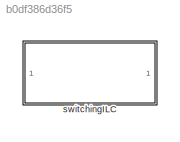
MODEL slx_b0df386d36f5
KIND library
CONFIG AbsTol = auto
CONFIG EnableMultiTasking = off
CONFIG FixedStep = auto
CONFIG MaxStep = auto
CONFIG MinStep = auto
CONFIG RelTol = 1e-3
CONFIG SampleTimeConstraint = Unconstrained
CONFIG SolverName = VariableStepAuto
CONFIG StartTime = 0.0
CONFIG StopTime = 10.0
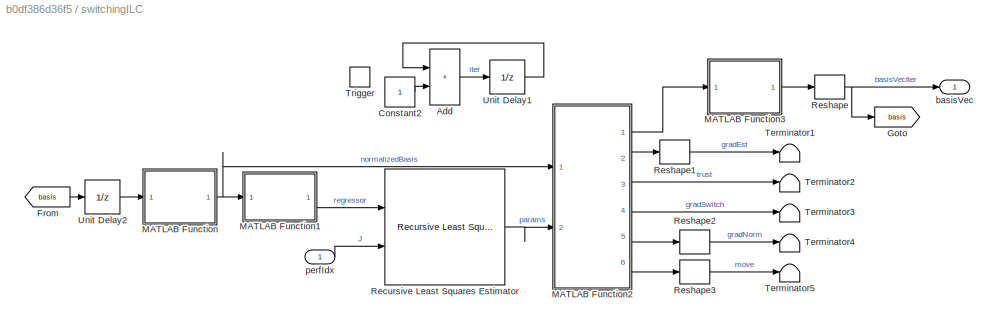
BLOCK [SubSystem] switchingILC
  Ports = [1, 1, 0, 1]
  RequestExecContextInheritance = off
BLOCK [Sum] switchingILC/Add
  IconShape = rectangular
  Ports = [2, 1]
BLOCK [Constant] switchingILC/Constant2
BLOCK [From] switchingILC/From
  GotoTag = basis
BLOCK [Goto] switchingILC/Goto
  GotoTag = basis
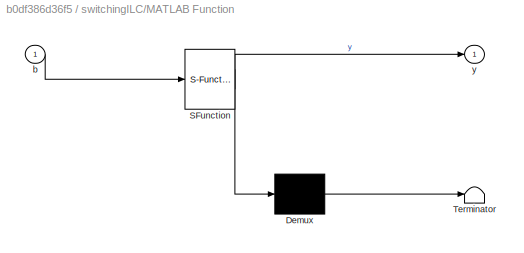
BLOCK [SubSystem] switchingILC/MATLAB Function
  ErrorFcn = Stateflow.Translate.translate
  PermitHierarchicalResolution = ExplicitOnly
  Ports = [1, 1]
  RequestExecContextInheritance = off
  SFBlockType = MATLAB Function
  TreatAsAtomicUnit = on
BLOCK [Demux] switchingILC/MATLAB Function/ Demux 
  Outputs = 1
  Ports = [1, 1]
BLOCK [S-Function] switchingILC/MATLAB Function/ SFunction 
  EnableBusSupport = off
  FunctionName = sf_sfun
  Parameters = lowerLim,upperLim
  PortCounts = [1 2]
  Ports = [1, 2]
  SFcnIsStateOwnerBlock = off
  SFunctionDeploymentMode = off
  Tag = Stateflow S-Function 3
BLOCK [Terminator] switchingILC/MATLAB Function/ Terminator 
BLOCK [Inport] switchingILC/MATLAB Function/b
BLOCK [Outport] switchingILC/MATLAB Function/y
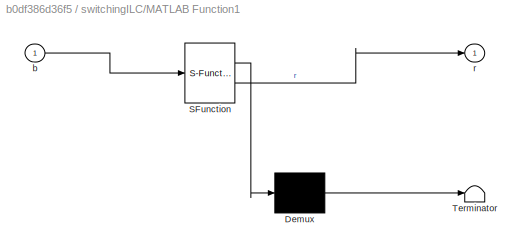
BLOCK [SubSystem] switchingILC/MATLAB Function1
  ErrorFcn = Stateflow.Translate.translate
  PermitHierarchicalResolution = ExplicitOnly
  Ports = [1, 1]
  RequestExecContextInheritance = off
  SFBlockType = MATLAB Function
  TreatAsAtomicUnit = on
BLOCK [Demux] switchingILC/MATLAB Function1/ Demux 
  Outputs = 1
  Ports = [1, 1]
BLOCK [S-Function] switchingILC/MATLAB Function1/ SFunction 
  EnableBusSupport = off
  FunctionName = sf_sfun
  PortCounts = [1 2]
  Ports = [1, 2]
  SFcnIsStateOwnerBlock = off
  SFunctionDeploymentMode = off
  Tag = Stateflow S-Function 2
BLOCK [Terminator] switchingILC/MATLAB Function1/ Terminator 
BLOCK [Inport] switchingILC/MATLAB Function1/b
BLOCK [Outport] switchingILC/MATLAB Function1/r
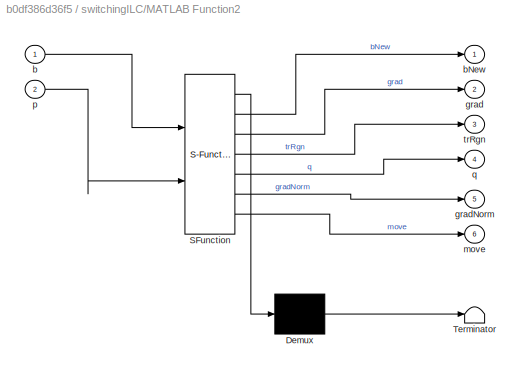
BLOCK [SubSystem] switchingILC/MATLAB Function2
  ErrorFcn = Stateflow.Translate.translate
  PermitHierarchicalResolution = ExplicitOnly
  Ports = [2, 6]
  RequestExecContextInheritance = off
  SFBlockType = MATLAB Function
  TreatAsAtomicUnit = on
BLOCK [Demux] switchingILC/MATLAB Function2/ Demux 
  Outputs = 1
  Ports = [1, 1]
BLOCK [S-Function] switchingILC/MATLAB Function2/ SFunction 
  EnableBusSupport = off
  FunctionName = sf_sfun
  Parameters = amp,lrn,paramDims,switching,trust
  PortCounts = [2 7]
  Ports = [2, 7]
  SFcnIsStateOwnerBlock = off
  SFunctionDeploymentMode = off
  Tag = Stateflow S-Function 1
BLOCK [Terminator] switchingILC/MATLAB Function2/ Terminator 
BLOCK [Inport] switchingILC/MATLAB Function2/b
BLOCK [Outport] switchingILC/MATLAB Function2/bNew
BLOCK [Outport] switchingILC/MATLAB Function2/grad
  Port = 2
BLOCK [Outport] switchingILC/MATLAB Function2/gradNorm
  Port = 5
BLOCK [Outport] switchingILC/MATLAB Function2/move
  Port = 6
BLOCK [Inport] switchingILC/MATLAB Function2/p
  Port = 2
BLOCK [Outport] switchingILC/MATLAB Function2/q
  Port = 4
BLOCK [Outport] switchingILC/MATLAB Function2/trRgn
  Port = 3
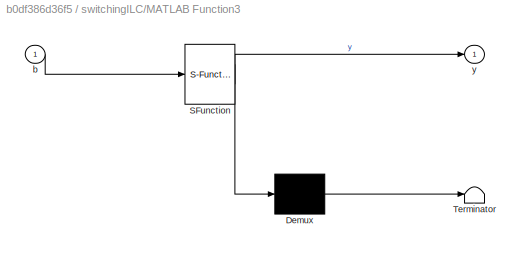
BLOCK [SubSystem] switchingILC/MATLAB Function3
  ErrorFcn = Stateflow.Translate.translate
  PermitHierarchicalResolution = ExplicitOnly
  Ports = [1, 1]
  RequestExecContextInheritance = off
  SFBlockType = MATLAB Function
  TreatAsAtomicUnit = on
BLOCK [Demux] switchingILC/MATLAB Function3/ Demux 
  Outputs = 1
  Ports = [1, 1]
BLOCK [S-Function] switchingILC/MATLAB Function3/ SFunction 
  EnableBusSupport = off
  FunctionName = sf_sfun
  Parameters = lowerLim,upperLim
  PortCounts = [1 2]
  Ports = [1, 2]
  SFcnIsStateOwnerBlock = off
  SFunctionDeploymentMode = off
  Tag = Stateflow S-Function 4
BLOCK [Terminator] switchingILC/MATLAB Function3/ Terminator 
BLOCK [Inport] switchingILC/MATLAB Function3/b
BLOCK [Outport] switchingILC/MATLAB Function3/y
BLOCK [Reference] switchingILC/Recursive Least Squares Estimator  REF=ctrlSharedLib/Recursive Least Squares Estimator
  Ports = [2, 1]
  SourceBlock = ctrlSharedLib/Recursive Least Squares Estimator
  SourceProductBaseCode = CT,ID
  SourceType = idEstimatorsRLS
BLOCK [Reshape] switchingILC/Reshape
  Ports = [1, 1]
BLOCK [Reshape] switchingILC/Reshape1
  Ports = [1, 1]
BLOCK [Reshape] switchingILC/Reshape2
  Ports = [1, 1]
BLOCK [Reshape] switchingILC/Reshape3
  Ports = [1, 1]
BLOCK [Terminator] switchingILC/Terminator1
BLOCK [Terminator] switchingILC/Terminator2
BLOCK [Terminator] switchingILC/Terminator3
BLOCK [Terminator] switchingILC/Terminator4
BLOCK [Terminator] switchingILC/Terminator5
BLOCK [TriggerPort] switchingILC/Trigger
  PortDimensions = 1
  Ports = []
  StatesWhenEnabling = held
  VariantControl = (inherit)
BLOCK [UnitDelay] switchingILC/Unit Delay1
  HasFrameUpgradeWarning = on
  SampleTime = -1
BLOCK [UnitDelay] switchingILC/Unit Delay2
  HasFrameUpgradeWarning = on
  InitialCondition = hiLvlCtrl.initParameters
  SampleTime = -1
BLOCK [Outport] switchingILC/basisVec
  InitialOutput = hiLvlCtrl.initParameters
BLOCK [Inport] switchingILC/perfIdx
  PortDimensions = 1
LINE switchingILC/Add:1 -> switchingILC/Unit Delay1:1
LINE switchingILC/Constant2:1 -> switchingILC/Add:2
LINE switchingILC/From:1 -> switchingILC/Unit Delay2:1
LINE switchingILC/MATLAB Function1:1 -> switchingILC/Recursive Least Squares Estimator:1
LINE switchingILC/MATLAB Function2:1 -> switchingILC/MATLAB Function3:1
LINE switchingILC/MATLAB Function2:2 -> switchingILC/Reshape1:1
LINE switchingILC/MATLAB Function2:3 -> switchingILC/Terminator2:1
LINE switchingILC/MATLAB Function2:4 -> switchingILC/Terminator3:1
LINE switchingILC/MATLAB Function2:5 -> switchingILC/Reshape2:1
LINE switchingILC/MATLAB Function2:6 -> switchingILC/Reshape3:1
LINE switchingILC/MATLAB Function3:1 -> switchingILC/Reshape:1
NET switchingILC/MATLAB Function:1 -> switchingILC/MATLAB Function1:1, switchingILC/MATLAB Function2:1
LINE switchingILC/Recursive Least Squares Estimator:1 -> switchingILC/MATLAB Function2:2
LINE switchingILC/Reshape1:1 -> switchingILC/Terminator1:1
LINE switchingILC/Reshape2:1 -> switchingILC/Terminator4:1
LINE switchingILC/Reshape3:1 -> switchingILC/Terminator5:1
NET switchingILC/Reshape:1 -> switchingILC/Goto:1, switchingILC/basisVec:1
LINE switchingILC/Unit Delay1:1 -> switchingILC/Add:1
LINE switchingILC/Unit Delay2:1 -> switchingILC/MATLAB Function:1
LINE switchingILC/perfIdx:1 -> switchingILC/Recursive Least Squares Estimator:2
note: NET lines group one-source signal fan-out (src -> all destinations, sorted); 1:1 wires keep LINE
CHART switchingILC/MATLAB Function2 states=1 transitions=1
  STATE_LABEL 'eML_blk_kernel()'
  STATE_LABEL 'SCRIPT:\nfunction [bNew,grad,trRgn,q,gradNorm,move] = fcn(b,p,lrn,trust,amp,switching,paramDims)\nb = b(:); %Reshape into column vector\nn = numel(b);\np = p(:); % Reshape to column\n\n%Calculate Gradient\ngrad = p(2:2:end)+2*p(3:2:end).*b(:);\n\n% Calculate Move\nmove = zeros(n,1); %Initialize the move vector\n%\ndeltaB = lrn(:).*grad;\n%\n\ntrustRgn = abs(trust(:)./deltaB);\ntrRgn = min([1;trustRgn]);\n\nm = nume...<+696ch>'
CHART switchingILC/MATLAB Function1 states=1 transitions=1
  STATE_LABEL 'eML_blk_kernel()'
  STATE_LABEL "SCRIPT:\nfunction r = fcn(b)\n% Preallocate column vector output\nr = ones(1+2*numel(b),1);\n% Build matrix of basis params and their squares\nb = [b(:) b(:).^2];\n% Reshape to column vector and store into output\nr(2:end) = reshape(b',[numel(b),1]);\n\n"
CHART switchingILC/MATLAB Function states=1 transitions=1
  STATE_LABEL 'eML_blk_kernel()'
  STATE_LABEL 'SCRIPT:\nfunction y = fcn(b,upperLim,lowerLim)\n\ny = (b(:)-lowerLim)./(upperLim-lowerLim);\n'
CHART switchingILC/MATLAB Function3 states=1 transitions=1
  STATE_LABEL 'eML_blk_kernel()'
  STATE_LABEL 'SCRIPT:\nfunction y = fcn(b,upperLim,lowerLim)\n\nb(b>1) = 1;\nb(b<0) = 0;\n\ny = b(:).*(upperLim-lowerLim)+lowerLim;\nif numel(y)>10 && numel(y)~=20\n    if y(2) > y(1)/2\n        y(2) = y(1)/2;\n    end\nend'
CHART  states=0 transitions=0
CHART  states=0 transitions=0
CHART  states=0 transitions=0
CHART  states=0 transitions=0
